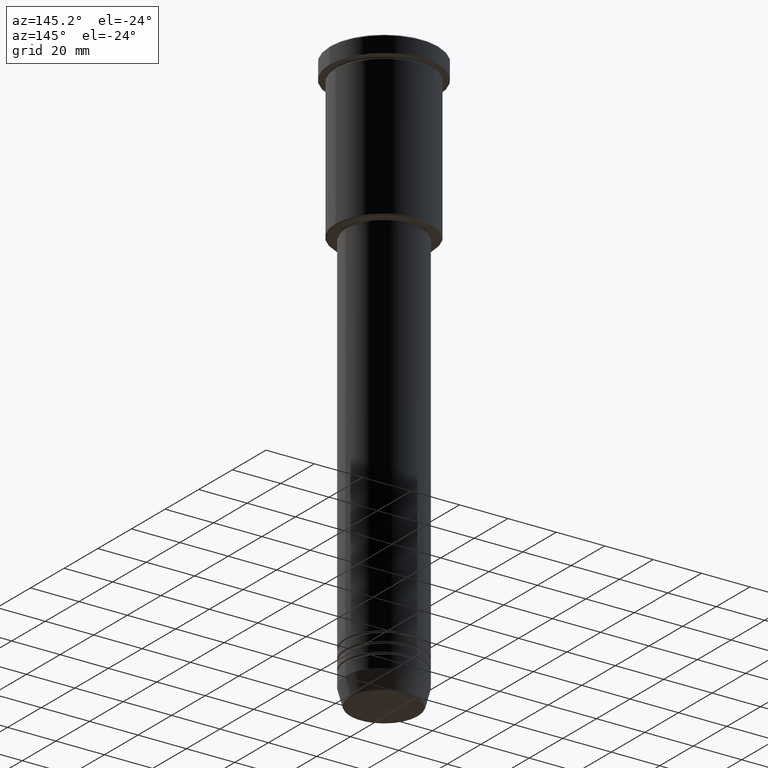
[diagram: clean part render]
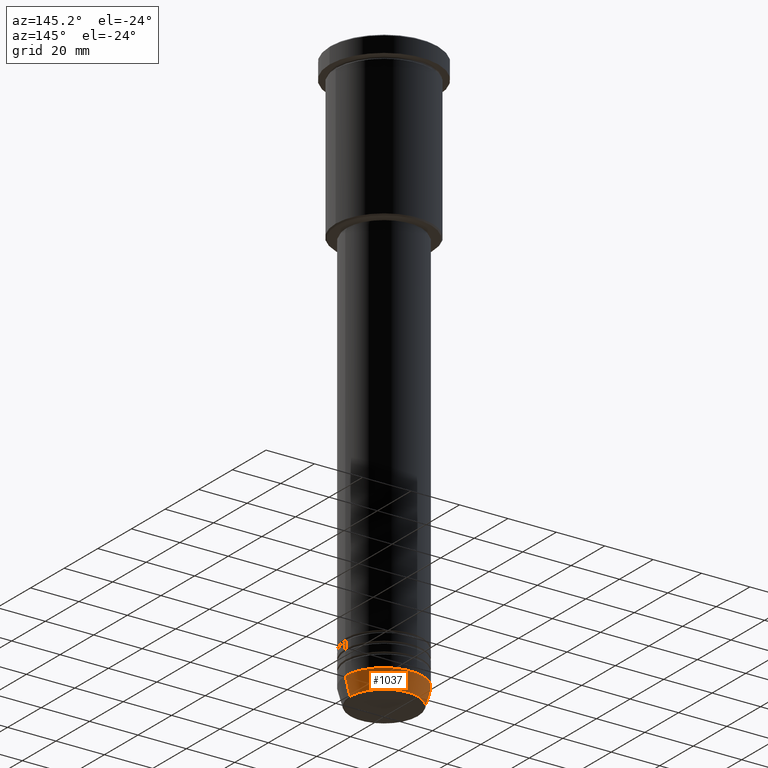
[diagram: same view with one face highlighted and labeled with its STEP entity id]
A machine part, auxiliary view. The second image highlights one B-rep face of the part: STEP entity #1037.
In plain terms, the highlighted conical surface has half-angle 15 deg.
Its self-contained STEP definition (entity closure, byte-faithful):
#4 = AXIS2_PLACEMENT_3D ( 'NONE', #579, #677, #1023 ) ;
#14 = DIRECTION ( 'NONE',  ( -0.000000000000000000, -0.000000000000000000, 1.000000000000000000 ) ) ;
#30 = FACE_OUTER_BOUND ( 'NONE', #793, .T. ) ;
#42 = VERTEX_POINT ( 'NONE', #432 ) ;
#64 = ORIENTED_EDGE ( 'NONE', *, *, #628, .F. ) ;
#141 = ORIENTED_EDGE ( 'NONE', *, *, #959, .F. ) ;
#163 = LINE ( 'NONE', #720, #1096 ) ;
#164 = CARTESIAN_POINT ( 'NONE',  ( 14.08968047592163941, 0.000000000000000000, -239.6294095225512422 ) ) ;
#200 = CARTESIAN_POINT ( 'NONE',  ( 16.00000000000000000, 0.000000000000000000, -232.5000000000000000 ) ) ;
#298 = VECTOR ( 'NONE', #929, 1000.000000000000000 ) ;
#308 = CARTESIAN_POINT ( 'NONE',  ( 16.00000000000000000, 0.000000000000000000, -232.5000000000000000 ) ) ;
#312 = AXIS2_PLACEMENT_3D ( 'NONE', #622, #534, #447 ) ;
#427 = ORIENTED_EDGE ( 'NONE', *, *, #617, .T. ) ;
#432 = CARTESIAN_POINT ( 'NONE',  ( -16.00000000000000000, 1.959434878635765131E-15, -232.5000000000000000 ) ) ;
#447 = DIRECTION ( 'NONE',  ( 1.000000000000000000, 0.000000000000000000, 0.000000000000000000 ) ) ;
#477 = CARTESIAN_POINT ( 'NONE',  ( 0.000000000000000000, 0.000000000000000000, -232.5000000000000000 ) ) ;
#480 = EDGE_CURVE ( 'NONE', #872, #1033, #789, .T. ) ;
#481 = DIRECTION ( 'NONE',  ( 1.000000000000000000, 0.000000000000000000, 0.000000000000000000 ) ) ;
#534 = DIRECTION ( 'NONE',  ( -0.000000000000000000, -0.000000000000000000, 1.000000000000000000 ) ) ;
#567 = CARTESIAN_POINT ( 'NONE',  ( -14.08968047592163941, 1.842461544110202058E-15, -239.6294095225512422 ) ) ;
#579 = CARTESIAN_POINT ( 'NONE',  ( 0.000000000000000000, 0.000000000000000000, -239.6294095225512422 ) ) ;
#617 = EDGE_CURVE ( 'NONE', #1033, #42, #163, .T. ) ;
#622 = CARTESIAN_POINT ( 'NONE',  ( 0.000000000000000000, 0.000000000000000000, -232.5000000000000000 ) ) ;
#628 = EDGE_CURVE ( 'NONE', #1107, #42, #996, .T. ) ;
#677 = DIRECTION ( 'NONE',  ( -0.000000000000000000, -0.000000000000000000, 1.000000000000000000 ) ) ;
#710 = AXIS2_PLACEMENT_3D ( 'NONE', #477, #14, #481 ) ;
#713 = DIRECTION ( 'NONE',  ( -0.2588190451025213501, 3.169619151431772337E-17, 0.9659258262890680902 ) ) ;
#719 = ORIENTED_EDGE ( 'NONE', *, *, #480, .T. ) ;
#720 = CARTESIAN_POINT ( 'NONE',  ( -16.00000000000000000, 1.959434878635765131E-15, -232.5000000000000000 ) ) ;
#789 = CIRCLE ( 'NONE', #4, 14.08968047592163941 ) ;
#793 = EDGE_LOOP ( 'NONE', ( #719, #427, #64, #141 ) ) ;
#846 = LINE ( 'NONE', #200, #298 ) ;
#872 = VERTEX_POINT ( 'NONE', #164 ) ;
#929 = DIRECTION ( 'NONE',  ( 0.2588190451025213501, 0.000000000000000000, 0.9659258262890680902 ) ) ;
#959 = EDGE_CURVE ( 'NONE', #872, #1107, #846, .T. ) ;
#996 = CIRCLE ( 'NONE', #312, 16.00000000000000000 ) ;
#1023 = DIRECTION ( 'NONE',  ( 1.000000000000000000, 0.000000000000000000, 0.000000000000000000 ) ) ;
#1033 = VERTEX_POINT ( 'NONE', #567 ) ;
#1037 = ADVANCED_FACE ( 'NONE', ( #30 ), #1136, .T. ) ;
#1096 = VECTOR ( 'NONE', #713, 1000.000000000000000 ) ;
#1107 = VERTEX_POINT ( 'NONE', #308 ) ;
#1136 = CONICAL_SURFACE ( 'NONE', #710, 16.00000000000000000, 0.2617993877991500740 ) ;